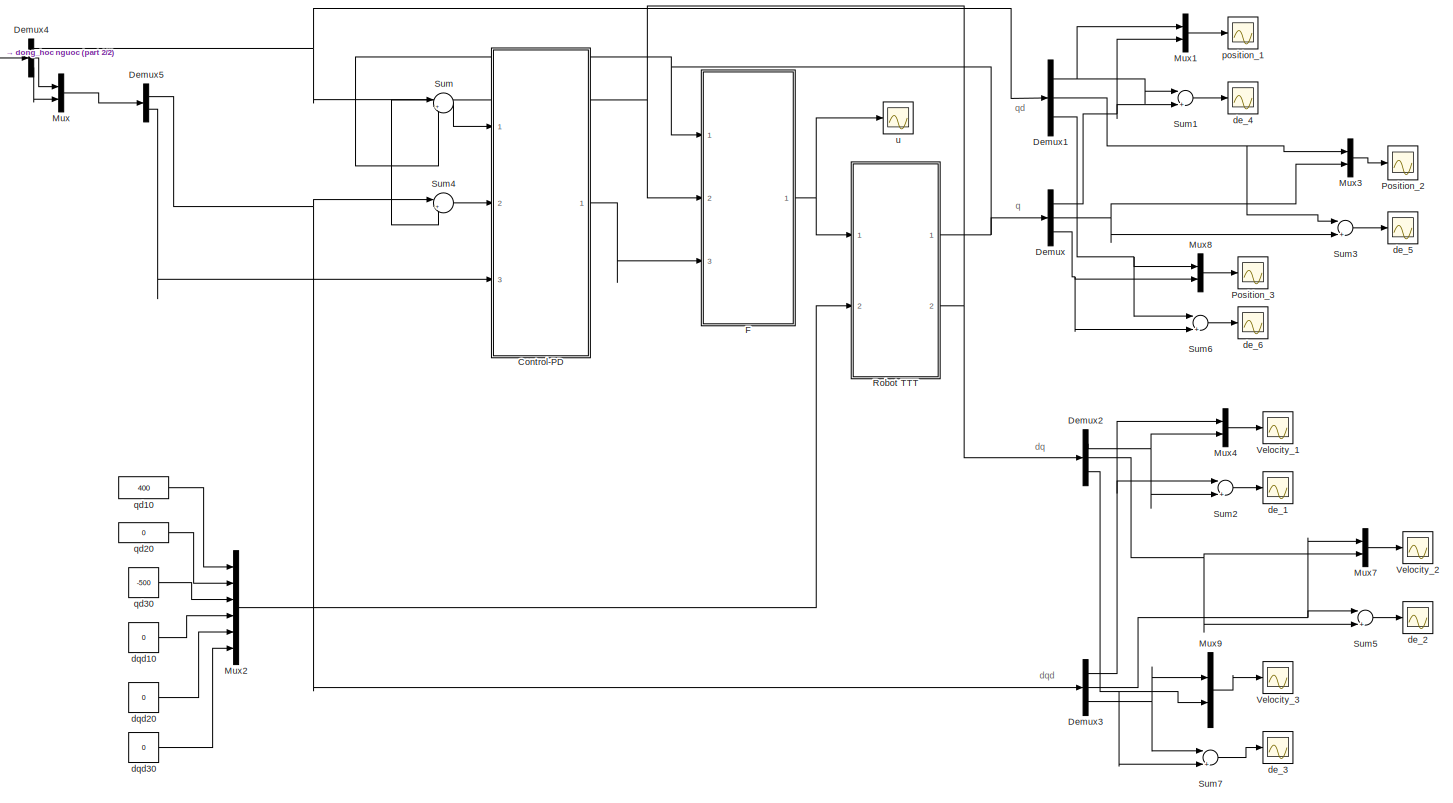
[diagram: root canvas - part 1/2, most of the canvas]
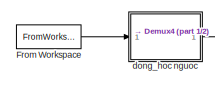
[diagram: root canvas - part 2/2, top left region]
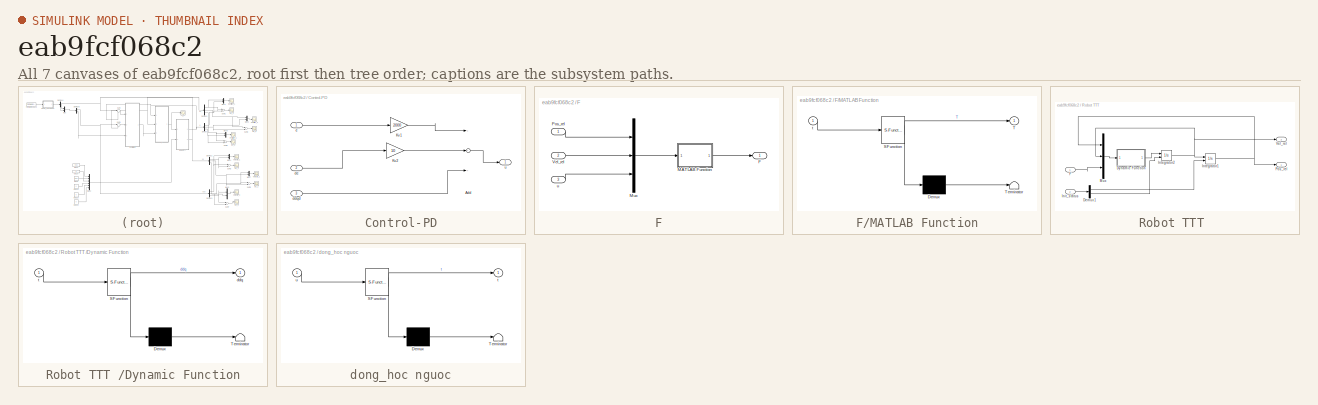
[diagram: thumbnail index - all 7 canvases of the model, root first then tree order]
MODEL slx_eab9fcf068c2
KIND model
CONFIG AbsTol = auto
CONFIG FixedStep = auto
CONFIG MaxStep = auto
CONFIG MinStep = auto
CONFIG RelTol = 1e-3
CONFIG SampleTimeConstraint = Unconstrained
CONFIG Solver = ode45
CONFIG SolverMode = Auto
CONFIG SolverName = ode45
CONFIG StartTime = 0.0
CONFIG StopTime = 322
BLOCK [SubSystem] Control-PD
  Ports = [3, 1]
  RequestExecContextInheritance = off
  Variant = off
BLOCK [Sum] Control-PD/Add
  InputSameDT = off
  Inputs = +++
  OutDataTypeStr = Inherit: Inherit via internal rule
  Ports = [3, 1]
  SaturateOnIntegerOverflow = off
BLOCK [Gain] Control-PD/Kv1
  Gain = 2000
  OutDataTypeStr = Inherit: Inherit via internal rule
  ParamDataTypeStr = Inherit: Inherit via internal rule
  SaturateOnIntegerOverflow = off
BLOCK [Gain] Control-PD/Kv2
  Gain = 10
  OutDataTypeStr = Inherit: Inherit via internal rule
  ParamDataTypeStr = Inherit: Inherit via internal rule
  SaturateOnIntegerOverflow = off
BLOCK [Inport] Control-PD/ddqd
  IconDisplay = Port number
  Port = 3
BLOCK [Inport] Control-PD/de
  IconDisplay = Port number
  Port = 2
BLOCK [Inport] Control-PD/e
  IconDisplay = Port number
BLOCK [Outport] Control-PD/u
  IconDisplay = Port number
BLOCK [Demux] Demux
  DisplayOption = bar
  Outputs = 3
  Ports = [1, 3]
BLOCK [Demux] Demux1
  DisplayOption = bar
  Outputs = 3
  Ports = [1, 3]
BLOCK [Demux] Demux2
  DisplayOption = bar
  Outputs = 3
  Ports = [1, 3]
BLOCK [Demux] Demux3
  DisplayOption = bar
  Outputs = 3
  Ports = [1, 3]
BLOCK [Demux] Demux4
  DisplayOption = bar
  Outputs = 3
  Ports = [1, 3]
BLOCK [Demux] Demux5
  DisplayOption = bar
  Outputs = 2
  Ports = [1, 2]
BLOCK [SubSystem] F
  Ports = [3, 1]
  RequestExecContextInheritance = off
  Variant = off
BLOCK [Outport] F/F
  IconDisplay = Port number
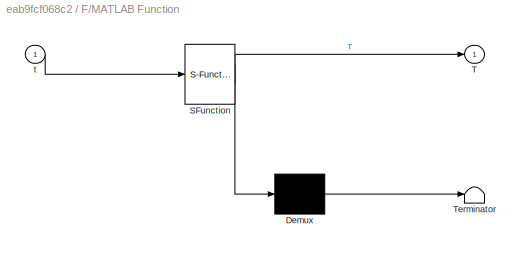
BLOCK [SubSystem] F/MATLAB Function
  ErrorFcn = Stateflow.Translate.translate
  PermitHierarchicalResolution = ExplicitOnly
  Ports = [1, 1]
  RequestExecContextInheritance = off
  SFBlockType = MATLAB Function
  TreatAsAtomicUnit = on
  Variant = off
BLOCK [Demux] F/MATLAB Function/ Demux 
  Outputs = 1
  Ports = [1, 1]
BLOCK [S-Function] F/MATLAB Function/ SFunction 
  EnableBusSupport = on
  FunctionName = sf_sfun
  PortCounts = [1 2]
  Ports = [1, 2]
  SFunctionDeploymentMode = off
  Tag = Stateflow S-Function dk_luc 1
BLOCK [Terminator] F/MATLAB Function/ Terminator 
BLOCK [Outport] F/MATLAB Function/T
  IconDisplay = Port number
BLOCK [Inport] F/MATLAB Function/t
  IconDisplay = Port number
BLOCK [Mux] F/Mux
  DisplayOption = bar
  Inputs = 3
  Ports = [3, 1]
BLOCK [Inport] F/Pos_rel
  IconDisplay = Port number
BLOCK [Inport] F/Vel_rel
  IconDisplay = Port number
  Port = 2
BLOCK [Inport] F/u
  IconDisplay = Port number
  Port = 3
BLOCK [FromWorkspace] From Workspace
  SampleTime = 0.01
  VariableName = s
  ZeroCross = on
BLOCK [Mux] Mux
  DisplayOption = bar
  Inputs = 2
  Ports = [2, 1]
BLOCK [Mux] Mux1
  DisplayOption = bar
  Inputs = 2
  Ports = [2, 1]
BLOCK [Mux] Mux2
  DisplayOption = bar
  Inputs = 6
  Ports = [6, 1]
BLOCK [Mux] Mux3
  DisplayOption = bar
  Inputs = 2
  Ports = [2, 1]
BLOCK [Mux] Mux4
  DisplayOption = bar
  Inputs = 2
  Ports = [2, 1]
BLOCK [Mux] Mux7
  DisplayOption = bar
  Inputs = 2
  Ports = [2, 1]
BLOCK [Mux] Mux8
  DisplayOption = bar
  Inputs = 2
  Ports = [2, 1]
BLOCK [Mux] Mux9
  DisplayOption = bar
  Inputs = 2
  Ports = [2, 1]
BLOCK [Scope] Position_2
  Ports = [1]
  ScopeSpecificationString = C++SS(StrPVP('Location','[158, 137, 1276, 690]'),StrPVP('Open','off'),MxPVP('AxesTitles',24,'struct(''axes1'',''Do thi dap ung ve vi tri cua khop 2'')'),MxPVP('ScopeGraphics',28,'struct(''FigureColor'',''[0.972549019607843 0.972549019607843 0.972549019607843]'',''AxesColor'',''[1 1 1]'',''AxesTickColor'',''[0 0 0]'',''LineColors'',''[0 0 0;0 1 1;0 1 1;1 0 0;0 1 0;0 0 1]'',''LineStyles'',''--|-|-|-...<+398ch>
BLOCK [Scope] Position_3
  Ports = [1]
  ScopeSpecificationString = C++SS(StrPVP('Location','[10, 60, 1376, 739]'),StrPVP('Open','off'),MxPVP('AxesTitles',24,'struct(''axes1'',''Do thi dap ung ve vi tri cua khop 3'')'),MxPVP('ScopeGraphics',28,'struct(''FigureColor'',''[0.972549019607843 0.972549019607843 0.972549019607843]'',''AxesColor'',''[0.905882352941176 0.905882352941176 0.905882352941176]'',''AxesTickColor'',''[0 0 0]'',''LineColors'',''[1 0 0;0 0 1;0 1 1;...<+434ch>
BLOCK [SubSystem] Robot TTT 
  Ports = [2, 2]
  RequestExecContextInheritance = off
  Variant = off
BLOCK [Demux] Robot TTT /Demux1
  DisplayOption = bar
  Outputs = 2
  Ports = [1, 2]
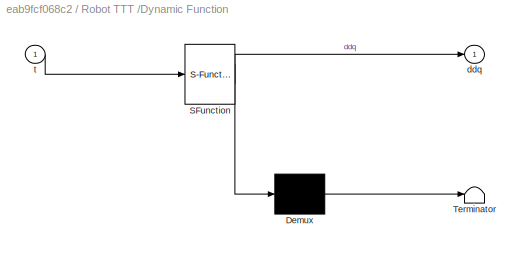
BLOCK [SubSystem] Robot TTT /Dynamic Function
  ErrorFcn = Stateflow.Translate.translate
  PermitHierarchicalResolution = ExplicitOnly
  Ports = [1, 1]
  RequestExecContextInheritance = off
  SFBlockType = MATLAB Function
  TreatAsAtomicUnit = on
  Variant = off
BLOCK [Demux] Robot TTT /Dynamic Function/ Demux 
  Outputs = 1
  Ports = [1, 1]
BLOCK [S-Function] Robot TTT /Dynamic Function/ SFunction 
  EnableBusSupport = on
  FunctionName = sf_sfun
  PortCounts = [1 2]
  Ports = [1, 2]
  SFunctionDeploymentMode = off
  Tag = Stateflow S-Function dk_luc 2
BLOCK [Terminator] Robot TTT /Dynamic Function/ Terminator 
BLOCK [Outport] Robot TTT /Dynamic Function/ddq
  IconDisplay = Port number
BLOCK [Inport] Robot TTT /Dynamic Function/t
  IconDisplay = Port number
BLOCK [Inport] Robot TTT /F
  IconDisplay = Port number
BLOCK [Inport] Robot TTT /Init_status
  IconDisplay = Port number
  Port = 2
BLOCK [Integrator] Robot TTT /Integrator1
  InitialConditionSource = external
  Ports = [2, 1]
BLOCK [Integrator] Robot TTT /Integrator2
  InitialConditionSource = external
  Ports = [2, 1]
BLOCK [Mux] Robot TTT /Mux
  DisplayOption = bar
  Inputs = 3
  Ports = [3, 1]
BLOCK [Outport] Robot TTT /Pos_rel
  IconDisplay = Port number
BLOCK [Outport] Robot TTT /Vel_rel
  IconDisplay = Port number
  Port = 2
BLOCK [Sum] Sum
  IconShape = round
  InputSameDT = off
  Inputs = |+-
  OutDataTypeStr = Inherit: Inherit via internal rule
  Ports = [2, 1]
  SaturateOnIntegerOverflow = off
BLOCK [Sum] Sum1
  InputSameDT = off
  Inputs = |+-
  OutDataTypeStr = Inherit: Inherit via internal rule
  Ports = [2, 1]
  SaturateOnIntegerOverflow = off
BLOCK [Sum] Sum2
  InputSameDT = off
  Inputs = |+-
  OutDataTypeStr = Inherit: Inherit via internal rule
  Ports = [2, 1]
  SaturateOnIntegerOverflow = off
BLOCK [Sum] Sum3
  InputSameDT = off
  Inputs = |+-
  OutDataTypeStr = Inherit: Inherit via internal rule
  Ports = [2, 1]
  SaturateOnIntegerOverflow = off
BLOCK [Sum] Sum4
  IconShape = round
  InputSameDT = off
  Inputs = |+-
  OutDataTypeStr = Inherit: Inherit via internal rule
  Ports = [2, 1]
  SaturateOnIntegerOverflow = off
BLOCK [Sum] Sum5
  InputSameDT = off
  Inputs = |+-
  OutDataTypeStr = Inherit: Inherit via internal rule
  Ports = [2, 1]
  SaturateOnIntegerOverflow = off
BLOCK [Sum] Sum6
  InputSameDT = off
  Inputs = |+-
  OutDataTypeStr = Inherit: Inherit via internal rule
  Ports = [2, 1]
  SaturateOnIntegerOverflow = off
BLOCK [Sum] Sum7
  InputSameDT = off
  Inputs = |+-
  OutDataTypeStr = Inherit: Inherit via internal rule
  Ports = [2, 1]
  SaturateOnIntegerOverflow = off
BLOCK [Scope] Velocity_1
  Ports = [1]
  ScopeSpecificationString = C++SS(StrPVP('Location','[10, 60, 1376, 739]'),StrPVP('Open','off'),MxPVP('AxesTitles',24,'struct(''axes1'',''%<SignalLabel>'')'),MxPVP('ScopeGraphics',28,'struct(''FigureColor'',''[0.972549019607843 0.972549019607843 0.972549019607843]'',''AxesColor'',''[0.905882352941176 0.905882352941176 0.905882352941176]'',''AxesTickColor'',''[0.513725490196078 0.380392156862745 0.482352941176471]'',''LineCol...<+381ch>
BLOCK [Scope] Velocity_2
  Ports = [1]
  ScopeSpecificationString = C++SS(StrPVP('Location','[11, 60, 1035, 724]'),StrPVP('Open','off'),StrPVP('ZoomMode','xonly'),MxPVP('AxesTitles',24,'struct(''axes1'',''%<SignalLabel>'')'),MxPVP('ScopeGraphics',28,'struct(''FigureColor'',''[0.972549019607843 0.972549019607843 0.972549019607843]'',''AxesColor'',''[0.905882352941176 0.905882352941176 0.905882352941176]'',''AxesTickColor'',''[0.513725490196078 0.380392156862745 0.4...<+376ch>
BLOCK [Scope] Velocity_3
  Ports = [1]
  ScopeSpecificationString = C++SS(StrPVP('Location','[11, 60, 1035, 724]'),StrPVP('Open','off'),StrPVP('ZoomMode','xonly'),MxPVP('AxesTitles',24,'struct(''axes1'',''%<SignalLabel>'')'),MxPVP('ScopeGraphics',28,'struct(''FigureColor'',''[0.972549019607843 0.972549019607843 0.972549019607843]'',''AxesColor'',''[0.905882352941176 0.905882352941176 0.905882352941176]'',''AxesTickColor'',''[0.513725490196078 0.380392156862745 0.4...<+408ch>
BLOCK [Scope] de_1
  Ports = [1]
  ScopeSpecificationString = C++SS(StrPVP('Location','[11, 60, 1035, 724]'),StrPVP('Open','off'),MxPVP('AxesTitles',24,'struct(''axes1'',''%<SignalLabel>'')'),MxPVP('ScopeGraphics',28,'struct(''FigureColor'',''[0.972549019607843 0.972549019607843 0.972549019607843]'',''AxesColor'',''[0.905882352941176 0.905882352941176 0.905882352941176]'',''AxesTickColor'',''[0.470588235294118 0.305882352941176 0.447058823529412]'',''LineCol...<+381ch>  <repeated x5 — deduplicated; at blocks: de_1, de_2, de_3, de_5, de_6>
BLOCK [Scope] de_2
  Ports = [1]
BLOCK [Scope] de_3
  Ports = [1]
BLOCK [Scope] de_4
  Ports = [1]
  ScopeSpecificationString = Simulink.scopes.TimeScopeBlockCfg('CurrentConfiguration', extmgr.ConfigurationSet(extmgr.Configuration('Core','General UI',true,'FigureColor',[0.972549019607843 0.972549019607843 0.972549019607843]),extmgr.Configuration('Core','Source UI',true),extmgr.Configuration('Sources','WiredSimulink',true,'DataLoggingVariableName','ScopeData6','DataLoggingSaveFormat','StructureWithTime','DataLoggingDecimati...<+2960ch>
BLOCK [Scope] de_5
  Ports = [1]
BLOCK [Scope] de_6
  Ports = [1]
BLOCK [SubSystem] dong_hoc nguoc
  ErrorFcn = Stateflow.Translate.translate
  PermitHierarchicalResolution = ExplicitOnly
  Ports = [1, 1]
  RequestExecContextInheritance = off
  SFBlockType = MATLAB Function
  TreatAsAtomicUnit = on
  Variant = off
BLOCK [Demux] dong_hoc nguoc/ Demux 
  Outputs = 1
  Ports = [1, 1]
BLOCK [S-Function] dong_hoc nguoc/ SFunction 
  EnableBusSupport = on
  FunctionName = sf_sfun
  PortCounts = [1 2]
  Ports = [1, 2]
  SFunctionDeploymentMode = off
  Tag = Stateflow S-Function dk_luc 4
BLOCK [Terminator] dong_hoc nguoc/ Terminator 
BLOCK [Outport] dong_hoc nguoc/t
  IconDisplay = Port number
BLOCK [Inport] dong_hoc nguoc/u
  IconDisplay = Port number
BLOCK [Constant] dqd10
  Value = 0
BLOCK [Constant] dqd20
  Value = 0
BLOCK [Constant] dqd30
  Value = 0
BLOCK [Scope] position_1
  Ports = [1]
  ScopeSpecificationString = Simulink.scopes.TimeScopeBlockCfg('CurrentConfiguration', extmgr.ConfigurationSet(extmgr.Configuration('Core','General UI',true,'FigureColor',[0.972549019607843 0.972549019607843 0.972549019607843]),extmgr.Configuration('Core','Source UI',true),extmgr.Configuration('Sources','WiredSimulink',true,'DataLogging',true,'DataLoggingVariableName','e3','SampleTime','0.01','DataLoggingSaveFormat','Array','...<+3014ch>
BLOCK [Constant] qd10
  Value = 400
BLOCK [Constant] qd20
  Value = 0
BLOCK [Constant] qd30
  Value = -500
BLOCK [Scope] u
  Ports = [1]
  ScopeSpecificationString = C++SS(StrPVP('Location','[10, 60, 1376, 739]'),StrPVP('Open','off'),MxPVP('AxesTitles',24,'struct(''axes1'',''Đồ thị lực tại khớp'')'),MxPVP('ScopeGraphics',28,'struct(''FigureColor'',''[0.831372549019608 0.815686274509804 0.784313725490196]'',''AxesColor'',''[0.862745098039216 0.862745098039216 0.862745098039216]'',''AxesTickColor'',''[0.349019607843137 0.2 0.329411764705882]'',''LineColors'',''[...<+490ch>
ANNOTATION (root): dq
ANNOTATION (root): dqd
ANNOTATION (root): q
ANNOTATION (root): qd
LINE Control-PD/Add:1 -> Control-PD/u:1
LINE Control-PD/Kv1:1 -> Control-PD/Add:1
LINE Control-PD/Kv2:1 -> Control-PD/Add:2
LINE Control-PD/ddqd:1 -> Control-PD/Add:3
LINE Control-PD/de:1 -> Control-PD/Kv2:1
LINE Control-PD/e:1 -> Control-PD/Kv1:1
LINE Control-PD:1 -> F:3
NET Demux1:1 -> Mux1:1, Sum1:1
NET Demux1:2 -> Mux3:1, Sum3:1
NET Demux1:3 -> Mux8:1, Sum6:1
NET Demux2:1 -> Mux4:2, Sum2:2
NET Demux2:2 -> Mux7:2, Sum5:2
NET Demux2:3 -> Mux9:2, Sum7:2
NET Demux3:1 -> Mux4:1, Sum2:1
NET Demux3:2 -> Mux7:1, Sum5:1
NET Demux3:3 -> Mux9:1, Sum7:1
NET Demux4:1 -> Demux1:1, Sum:1
LINE Demux4:2 -> Mux:1
LINE Demux4:3 -> Mux:2
NET Demux5:1 -> Demux3:1, Sum4:1
LINE Demux5:2 -> Control-PD:3
NET Demux:1 -> Mux1:2, Sum1:2
NET Demux:2 -> Mux3:2, Sum3:2
NET Demux:3 -> Mux8:2, Sum6:2
LINE F/MATLAB Function:1 -> F/F:1
LINE F/Mux:1 -> F/MATLAB Function:1
LINE F/Pos_rel:1 -> F/Mux:1
LINE F/Vel_rel:1 -> F/Mux:2
LINE F/u:1 -> F/Mux:3
NET F:1 -> Robot TTT :1, u:1
LINE From Workspace:1 -> dong_hoc nguoc:1
LINE Mux1:1 -> position_1:1
LINE Mux2:1 -> Robot TTT :2
LINE Mux3:1 -> Position_2:1
LINE Mux4:1 -> Velocity_1:1
LINE Mux7:1 -> Velocity_2:1
LINE Mux8:1 -> Position_3:1
LINE Mux9:1 -> Velocity_3:1
LINE Mux:1 -> Demux5:1
LINE Robot TTT /Demux1:1 -> Robot TTT /Integrator1:2
LINE Robot TTT /Demux1:2 -> Robot TTT /Integrator2:2
LINE Robot TTT /Dynamic Function:1 -> Robot TTT /Integrator2:1
LINE Robot TTT /F:1 -> Robot TTT /Mux:3
LINE Robot TTT /Init_status:1 -> Robot TTT /Demux1:1
NET Robot TTT /Integrator1:1 -> Robot TTT /Mux:1, Robot TTT /Pos_rel:1
NET Robot TTT /Integrator2:1 -> Robot TTT /Integrator1:1, Robot TTT /Mux:2, Robot TTT /Vel_rel:1
LINE Robot TTT /Mux:1 -> Robot TTT /Dynamic Function:1
NET Robot TTT :1 -> Demux:1, F:1, Sum:2
NET Robot TTT :2 -> Demux2:1, F:2, Sum4:2
LINE Sum1:1 -> de_4:1
LINE Sum2:1 -> de_1:1
LINE Sum3:1 -> de_5:1
LINE Sum4:1 -> Control-PD:2
LINE Sum5:1 -> de_2:1
LINE Sum6:1 -> de_6:1
LINE Sum7:1 -> de_3:1
LINE Sum:1 -> Control-PD:1
LINE dong_hoc nguoc:1 -> Demux4:1
LINE dqd10:1 -> Mux2:4
LINE dqd20:1 -> Mux2:5
LINE dqd30:1 -> Mux2:6
LINE qd10:1 -> Mux2:1
LINE qd20:1 -> Mux2:2
LINE qd30:1 -> Mux2:3
note: NET lines group one-source signal fan-out (src -> all destinations, sorted); 1:1 wires keep LINE
CHART F/MATLAB Function states=1 transitions=1
  STATE_LABEL 'eML_blk_kernel()'
  STATE_LABEL "SCRIPT:\nfunction T = InverseModel(t)\nm1 = 25.24; m2 = 44.4; m3 = 2.5;\ng = 9.81;\nFx=22; Fy=2; Fz=10;\n% vector toa do suy rong (toa do khop)\nq = t(1:3);\n% vector dao ham cac toa do suy rong (toa do khop)\ndq = t(4:6);\n% vector luc suy rong ung voi cac toa do suy rong (toa do khop)\nu = t(7:9).';\n% Ma tran khoi luong\nm11=m1+m2+m3; \nm12 = 0;\nm13=0;\nm21 = m12;\nm22 = m3+m2;\nm23 =0;\nm31=m13;\nm32=m23;\nm33=m...<+270ch>"
CHART Robot TTT /Dynamic Function states=1 transitions=1
  STATE_LABEL 'eML_blk_kernel()'
  STATE_LABEL "SCRIPT:\nfunction ddq = RobotDynamic(t)\n% cac tham so dong hoc, dong luc hoc\nm1 = 25.24; m2 = 44.4; m3 = 2.5;\ng = 9.81;\n\nFx=20; Fy=20; Fz=10;\n\n% vector toa do suy rong (toa do khop)\nq = t(1:3);\n% vector dao ham cac toa do suy rong (toa do khop)\ndq = t(4:6);\n% vector luc suy rong ung voi cac toa do suy rong (toa do khop)\nU = t(7:9).';\n%load = t(10);\n%m3 = load + m3;\n\n% Ma tran khoi luong\nm11=m1+m2+m...<+387ch>"
CHART dong_hoc nguoc states=1 transitions=1
  STATE_LABEL 'eML_blk_kernel()'
  STATE_LABEL 'SCRIPT:\nfunction t = fcn(u)\n%#codegen\nx=u(1);\ny=u(2);\nz=u(3);\nvx=u(4);\nvy=u(5);\nvz=u(6);\nax=u(7);\nay=u(8);\naz=u(9)\nd1=60;\nd2=360;\nd3=620;\na3=110;\n%vi tri\nt1=z-d1;\nt2=-x+d2-a3;\nt3=-y-d3;\n%van toc\nt1_dot=vz;\nt2_dot=-vx;\nt3_dot=-vy;\n%gia  toc\nt1_2dot=az;\nt2_2dot=-ax;\nt3_2dot=-ay;\nt=[t1 t2 t3 t1_dot t2_dot t3_dot t1_2dot t2_2dot t3_2dot]\n'
